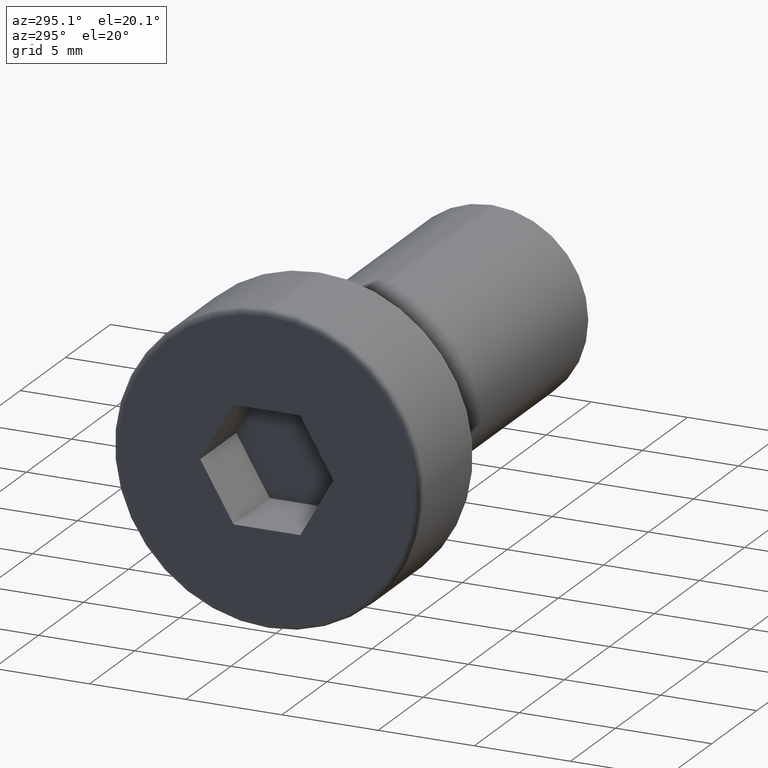
[diagram: clean part render]
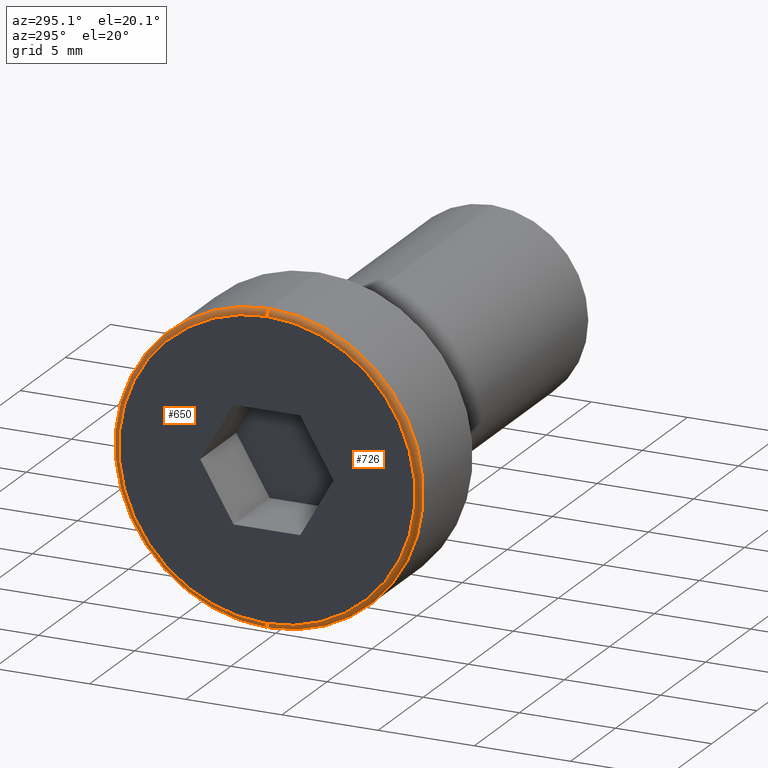
[diagram: same view with one multi-face feature highlighted, each face labeled with its STEP entity id]
A machine part, auxiliary view. The highlighted faces form ONE feature: a constant-radius fillet chain: 2 tangent blend faces with common blend radius 0.3 mm. The faces share edges in the B-rep.
Their STEP definitions:
[1] entity #726 (Torus):
#12 = ORIENTED_EDGE ( 'NONE', *, *, #689, .T. ) ;
#20 = EDGE_CURVE ( 'NONE', #787, #605, #557, .T. ) ;
#134 = CARTESIAN_POINT ( 'NONE',  ( -5.700000000000000200, 9.429780353434619000E-016, 7.700000000000000200 ) ) ;
#143 = EDGE_LOOP ( 'NONE', ( #210, #351, #12, #167 ) ) ;
#148 = CARTESIAN_POINT ( 'NONE',  ( -5.700000000000000200, 9.797174393178825700E-016, 8.000000000000000000 ) ) ;
#167 = ORIENTED_EDGE ( 'NONE', *, *, #470, .F. ) ;
#193 = DIRECTION ( 'NONE',  ( 0.0000000000000000000, 0.0000000000000000000, -1.000000000000000000 ) ) ;
#210 = ORIENTED_EDGE ( 'NONE', *, *, #20, .F. ) ;
#211 = DIRECTION ( 'NONE',  ( 0.0000000000000000000, 0.0000000000000000000, -1.000000000000000000 ) ) ;
#226 = AXIS2_PLACEMENT_3D ( 'NONE', #712, #419, #669 ) ;
#258 = DIRECTION ( 'NONE',  ( 1.000000000000000000, 0.0000000000000000000, 0.0000000000000000000 ) ) ;
#269 = AXIS2_PLACEMENT_3D ( 'NONE', #375, #567, #193 ) ;
#278 = EDGE_CURVE ( 'NONE', #602, #787, #462, .T. ) ;
#292 = FACE_OUTER_BOUND ( 'NONE', #143, .T. ) ;
#300 = VERTEX_POINT ( 'NONE', #695 ) ;
#307 = DIRECTION ( 'NONE',  ( 0.0000000000000000000, 1.224646799147353200E-016, 1.000000000000000000 ) ) ;
#350 = CIRCLE ( 'NONE', #791, 0.2999999999999999300 ) ;
#351 = ORIENTED_EDGE ( 'NONE', *, *, #278, .F. ) ;
#360 = AXIS2_PLACEMENT_3D ( 'NONE', #134, #501, #307 ) ;
#375 = CARTESIAN_POINT ( 'NONE',  ( -6.000000000000000000, 0.0000000000000000000, 0.0000000000000000000 ) ) ;
#419 = DIRECTION ( 'NONE',  ( 1.000000000000000000, 0.0000000000000000000, 0.0000000000000000000 ) ) ;
#420 = CARTESIAN_POINT ( 'NONE',  ( -6.000000000000000000, 0.0000000000000000000, -7.700000000000000200 ) ) ;
#462 = CIRCLE ( 'NONE', #269, 7.700000000000000200 ) ;
#470 = EDGE_CURVE ( 'NONE', #605, #300, #617, .T. ) ;
#501 = DIRECTION ( 'NONE',  ( 0.0000000000000000000, 1.000000000000000000, -1.224646799147353200E-016 ) ) ;
#557 = CIRCLE ( 'NONE', #360, 0.2999999999999999300 ) ;
#567 = DIRECTION ( 'NONE',  ( -1.000000000000000000, -0.0000000000000000000, -0.0000000000000000000 ) ) ;
#572 = DIRECTION ( 'NONE',  ( 0.0000000000000000000, 0.0000000000000000000, -1.000000000000000000 ) ) ;
#602 = VERTEX_POINT ( 'NONE', #420 ) ;
#605 = VERTEX_POINT ( 'NONE', #148 ) ;
#607 = CARTESIAN_POINT ( 'NONE',  ( -5.700000000000000200, 0.0000000000000000000, -7.700000000000000200 ) ) ;
#612 = TOROIDAL_SURFACE ( 'NONE', #226, 7.700000000000000200, 0.2999999999999999900 ) ;
#617 = CIRCLE ( 'NONE', #629, 8.000000000000000000 ) ;
#629 = AXIS2_PLACEMENT_3D ( 'NONE', #631, #258, #572 ) ;
#631 = CARTESIAN_POINT ( 'NONE',  ( -5.700000000000000200, 0.0000000000000000000, 0.0000000000000000000 ) ) ;
#669 = DIRECTION ( 'NONE',  ( 0.0000000000000000000, 0.0000000000000000000, -1.000000000000000000 ) ) ;
#689 = EDGE_CURVE ( 'NONE', #602, #300, #350, .T. ) ;
#695 = CARTESIAN_POINT ( 'NONE',  ( -5.700000000000000200, 0.0000000000000000000, -8.000000000000000000 ) ) ;
#712 = CARTESIAN_POINT ( 'NONE',  ( -5.700000000000000200, 0.0000000000000000000, 0.0000000000000000000 ) ) ;
#726 = ADVANCED_FACE ( 'NONE', ( #292 ), #612, .T. ) ;
#771 = DIRECTION ( 'NONE',  ( 0.0000000000000000000, -1.000000000000000000, 0.0000000000000000000 ) ) ;
#778 = CARTESIAN_POINT ( 'NONE',  ( -6.000000000000000000, 9.613477373306721400E-016, 7.700000000000000200 ) ) ;
#787 = VERTEX_POINT ( 'NONE', #778 ) ;
#791 = AXIS2_PLACEMENT_3D ( 'NONE', #607, #771, #211 ) ;
[2] entity #650 (Torus):
#3 = AXIS2_PLACEMENT_3D ( 'NONE', #296, #431, #243 ) ;
#16 = DIRECTION ( 'NONE',  ( -1.000000000000000000, -0.0000000000000000000, -0.0000000000000000000 ) ) ;
#20 = EDGE_CURVE ( 'NONE', #787, #605, #557, .T. ) ;
#54 = TOROIDAL_SURFACE ( 'NONE', #570, 7.700000000000000200, 0.2999999999999999900 ) ;
#95 = DIRECTION ( 'NONE',  ( 0.0000000000000000000, 0.0000000000000000000, -1.000000000000000000 ) ) ;
#134 = CARTESIAN_POINT ( 'NONE',  ( -5.700000000000000200, 9.429780353434619000E-016, 7.700000000000000200 ) ) ;
#148 = CARTESIAN_POINT ( 'NONE',  ( -5.700000000000000200, 9.797174393178825700E-016, 8.000000000000000000 ) ) ;
#159 = EDGE_CURVE ( 'NONE', #300, #605, #348, .T. ) ;
#211 = DIRECTION ( 'NONE',  ( 0.0000000000000000000, 0.0000000000000000000, -1.000000000000000000 ) ) ;
#243 = DIRECTION ( 'NONE',  ( 0.0000000000000000000, 0.0000000000000000000, -1.000000000000000000 ) ) ;
#282 = DIRECTION ( 'NONE',  ( 1.000000000000000000, 0.0000000000000000000, 0.0000000000000000000 ) ) ;
#296 = CARTESIAN_POINT ( 'NONE',  ( -5.700000000000000200, 0.0000000000000000000, 0.0000000000000000000 ) ) ;
#300 = VERTEX_POINT ( 'NONE', #695 ) ;
#307 = DIRECTION ( 'NONE',  ( 0.0000000000000000000, 1.224646799147353200E-016, 1.000000000000000000 ) ) ;
#339 = CARTESIAN_POINT ( 'NONE',  ( -6.000000000000000000, 0.0000000000000000000, 0.0000000000000000000 ) ) ;
#348 = CIRCLE ( 'NONE', #3, 8.000000000000000000 ) ;
#350 = CIRCLE ( 'NONE', #791, 0.2999999999999999300 ) ;
#360 = AXIS2_PLACEMENT_3D ( 'NONE', #134, #501, #307 ) ;
#382 = CARTESIAN_POINT ( 'NONE',  ( -5.700000000000000200, 0.0000000000000000000, 0.0000000000000000000 ) ) ;
#420 = CARTESIAN_POINT ( 'NONE',  ( -6.000000000000000000, 0.0000000000000000000, -7.700000000000000200 ) ) ;
#431 = DIRECTION ( 'NONE',  ( 1.000000000000000000, 0.0000000000000000000, 0.0000000000000000000 ) ) ;
#452 = CIRCLE ( 'NONE', #504, 7.700000000000000200 ) ;
#460 = EDGE_CURVE ( 'NONE', #787, #602, #452, .T. ) ;
#501 = DIRECTION ( 'NONE',  ( 0.0000000000000000000, 1.000000000000000000, -1.224646799147353200E-016 ) ) ;
#504 = AXIS2_PLACEMENT_3D ( 'NONE', #339, #16, #728 ) ;
#514 = ORIENTED_EDGE ( 'NONE', *, *, #20, .T. ) ;
#557 = CIRCLE ( 'NONE', #360, 0.2999999999999999300 ) ;
#570 = AXIS2_PLACEMENT_3D ( 'NONE', #382, #282, #95 ) ;
#594 = EDGE_LOOP ( 'NONE', ( #663, #514, #801, #694 ) ) ;
#602 = VERTEX_POINT ( 'NONE', #420 ) ;
#605 = VERTEX_POINT ( 'NONE', #148 ) ;
#607 = CARTESIAN_POINT ( 'NONE',  ( -5.700000000000000200, 0.0000000000000000000, -7.700000000000000200 ) ) ;
#650 = ADVANCED_FACE ( 'NONE', ( #710 ), #54, .T. ) ;
#663 = ORIENTED_EDGE ( 'NONE', *, *, #460, .F. ) ;
#689 = EDGE_CURVE ( 'NONE', #602, #300, #350, .T. ) ;
#694 = ORIENTED_EDGE ( 'NONE', *, *, #689, .F. ) ;
#695 = CARTESIAN_POINT ( 'NONE',  ( -5.700000000000000200, 0.0000000000000000000, -8.000000000000000000 ) ) ;
#710 = FACE_OUTER_BOUND ( 'NONE', #594, .T. ) ;
#728 = DIRECTION ( 'NONE',  ( 0.0000000000000000000, 0.0000000000000000000, -1.000000000000000000 ) ) ;
#771 = DIRECTION ( 'NONE',  ( 0.0000000000000000000, -1.000000000000000000, 0.0000000000000000000 ) ) ;
#778 = CARTESIAN_POINT ( 'NONE',  ( -6.000000000000000000, 9.613477373306721400E-016, 7.700000000000000200 ) ) ;
#787 = VERTEX_POINT ( 'NONE', #778 ) ;
#791 = AXIS2_PLACEMENT_3D ( 'NONE', #607, #771, #211 ) ;
#801 = ORIENTED_EDGE ( 'NONE', *, *, #159, .F. ) ;